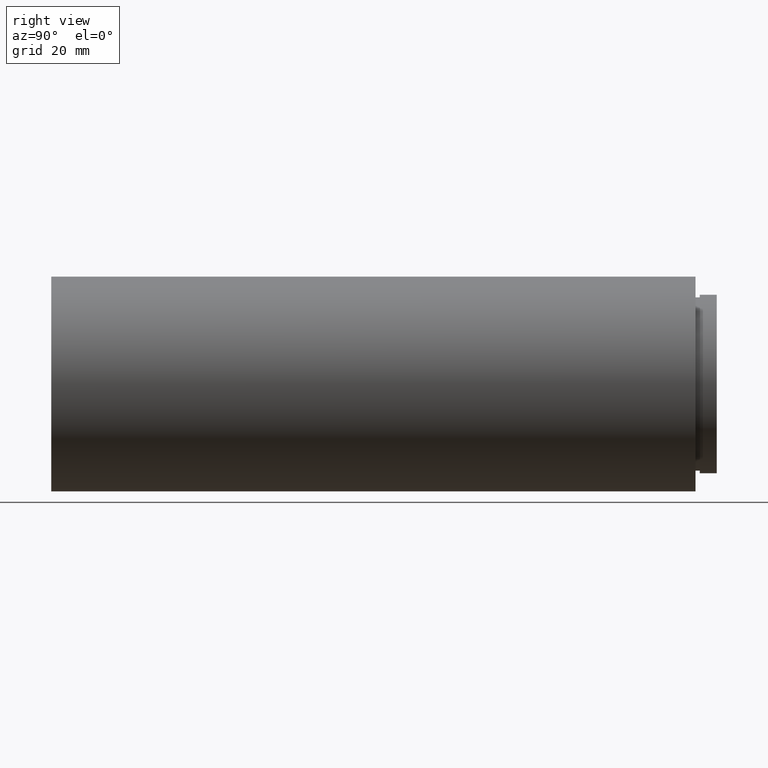
[diagram: clean part render]
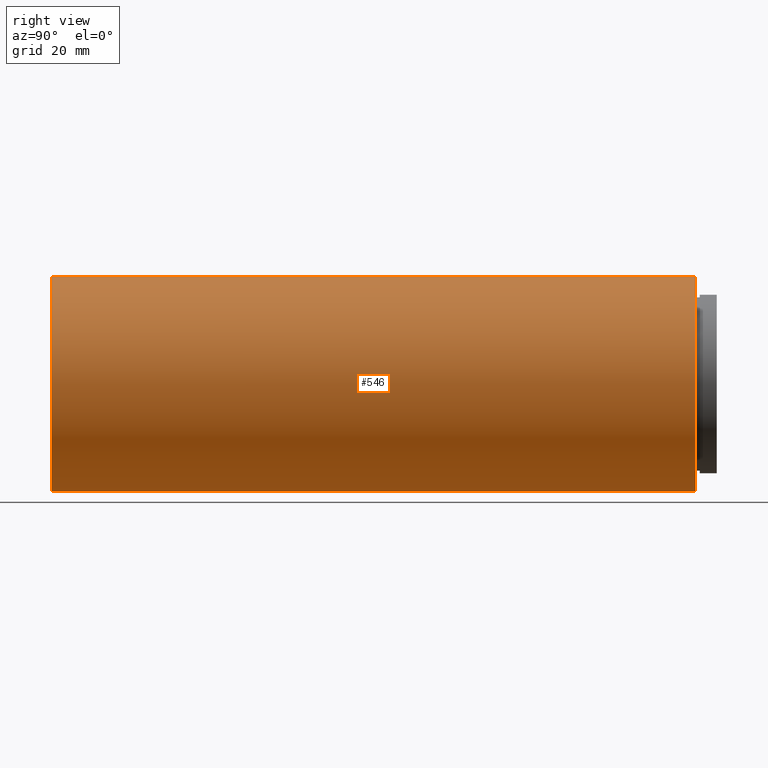
[diagram: same view with one face highlighted and labeled with its STEP entity id]
A machine part, right view. The second image highlights one B-rep face of the part: STEP entity #546.
In plain terms, the highlighted cylindrical surface (partial cylindrical patch) has radius 25.4 mm, axis along (-0, 1, -0).
Its self-contained STEP definition (entity closure, byte-faithful):
#2 = EDGE_CURVE ( 'NONE', #559, #291, #601, .T. ) ;
#4 = LINE ( 'NONE', #400, #465 ) ;
#15 = EDGE_CURVE ( 'NONE', #333, #559, #62, .T. ) ;
#56 = CARTESIAN_POINT ( 'NONE',  ( 0.0000000000000000000, 152.3999999999999800, 25.40000000000002000 ) ) ;
#62 = LINE ( 'NONE', #492, #502 ) ;
#79 = AXIS2_PLACEMENT_3D ( 'NONE', #446, #174, #262 ) ;
#81 = DIRECTION ( 'NONE',  ( -0.0000000000000000000, 1.000000000000000000, -0.0000000000000000000 ) ) ;
#96 = DIRECTION ( 'NONE',  ( -0.0000000000000000000, 1.000000000000000000, -0.0000000000000000000 ) ) ;
#101 = ORIENTED_EDGE ( 'NONE', *, *, #2, .F. ) ;
#121 = AXIS2_PLACEMENT_3D ( 'NONE', #378, #96, #619 ) ;
#127 = CYLINDRICAL_SURFACE ( 'NONE', #507, 25.40000000000002000 ) ;
#139 = CARTESIAN_POINT ( 'NONE',  ( 3.110602869834279600E-015, -2.775557561562891400E-014, -25.40000000000002000 ) ) ;
#157 = CARTESIAN_POINT ( 'NONE',  ( 0.0000000000000000000, -2.775557561562891400E-014, 25.40000000000002000 ) ) ;
#162 = FACE_OUTER_BOUND ( 'NONE', #353, .T. ) ;
#174 = DIRECTION ( 'NONE',  ( -0.0000000000000000000, 1.000000000000000000, -0.0000000000000000000 ) ) ;
#201 = CARTESIAN_POINT ( 'NONE',  ( 0.0000000000000000000, 161.3761669434274500, 0.0000000000000000000 ) ) ;
#207 = CARTESIAN_POINT ( 'NONE',  ( 3.110602869834279600E-015, 152.3999999999999800, -25.40000000000002000 ) ) ;
#216 = DIRECTION ( 'NONE',  ( -0.0000000000000000000, 1.000000000000000000, -0.0000000000000000000 ) ) ;
#262 = DIRECTION ( 'NONE',  ( 0.0000000000000000000, 0.0000000000000000000, 1.000000000000000000 ) ) ;
#291 = VERTEX_POINT ( 'NONE', #207 ) ;
#302 = ORIENTED_EDGE ( 'NONE', *, *, #359, .T. ) ;
#303 = CIRCLE ( 'NONE', #121, 25.40000000000002000 ) ;
#333 = VERTEX_POINT ( 'NONE', #157 ) ;
#340 = DIRECTION ( 'NONE',  ( 0.0000000000000000000, 0.0000000000000000000, 1.000000000000000000 ) ) ;
#353 = EDGE_LOOP ( 'NONE', ( #537, #302, #101, #374 ) ) ;
#359 = EDGE_CURVE ( 'NONE', #468, #291, #4, .T. ) ;
#374 = ORIENTED_EDGE ( 'NONE', *, *, #15, .F. ) ;
#378 = CARTESIAN_POINT ( 'NONE',  ( 0.0000000000000000000, -2.775557561562891400E-014, 0.0000000000000000000 ) ) ;
#400 = CARTESIAN_POINT ( 'NONE',  ( 3.110602869834279600E-015, 161.3761669434274500, -25.40000000000002000 ) ) ;
#446 = CARTESIAN_POINT ( 'NONE',  ( 0.0000000000000000000, 152.3999999999999800, 0.0000000000000000000 ) ) ;
#465 = VECTOR ( 'NONE', #81, 1000.000000000000000 ) ;
#468 = VERTEX_POINT ( 'NONE', #139 ) ;
#487 = EDGE_CURVE ( 'NONE', #333, #468, #303, .T. ) ;
#492 = CARTESIAN_POINT ( 'NONE',  ( 0.0000000000000000000, 161.3761669434274500, 25.40000000000002000 ) ) ;
#502 = VECTOR ( 'NONE', #216, 1000.000000000000000 ) ;
#507 = AXIS2_PLACEMENT_3D ( 'NONE', #201, #532, #340 ) ;
#532 = DIRECTION ( 'NONE',  ( -0.0000000000000000000, 1.000000000000000000, -0.0000000000000000000 ) ) ;
#537 = ORIENTED_EDGE ( 'NONE', *, *, #487, .T. ) ;
#546 = ADVANCED_FACE ( 'NONE', ( #162 ), #127, .T. ) ;
#559 = VERTEX_POINT ( 'NONE', #56 ) ;
#601 = CIRCLE ( 'NONE', #79, 25.40000000000002000 ) ;
#619 = DIRECTION ( 'NONE',  ( 0.0000000000000000000, 0.0000000000000000000, 1.000000000000000000 ) ) ;